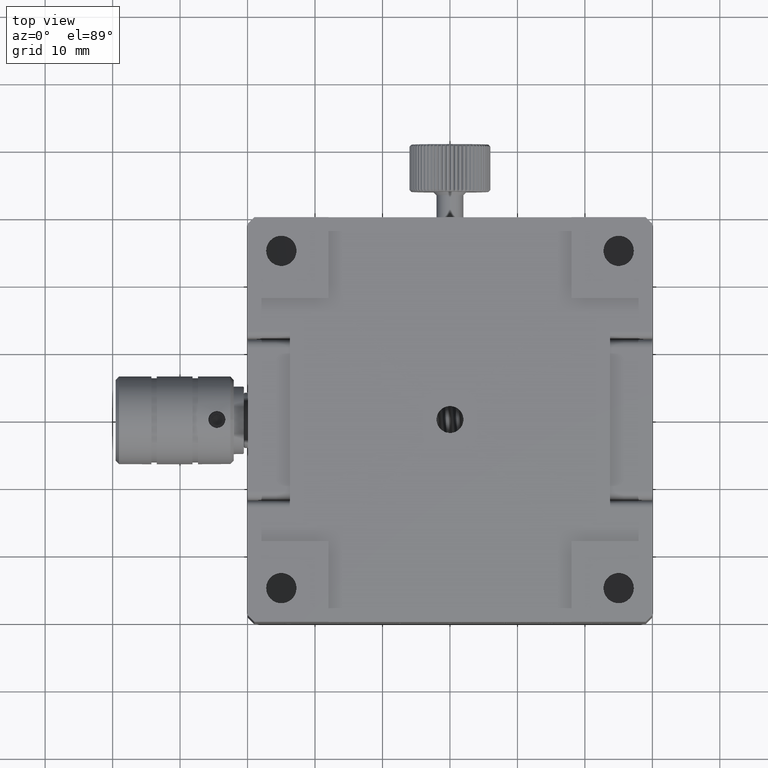
[diagram: clean part render]
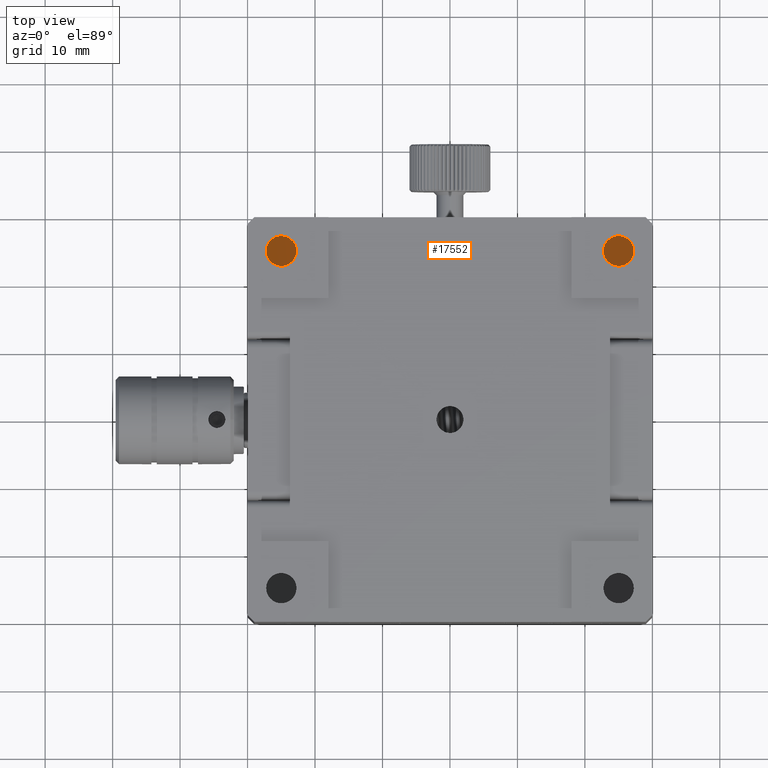
[diagram: same view with one face highlighted and labeled with its STEP entity id]
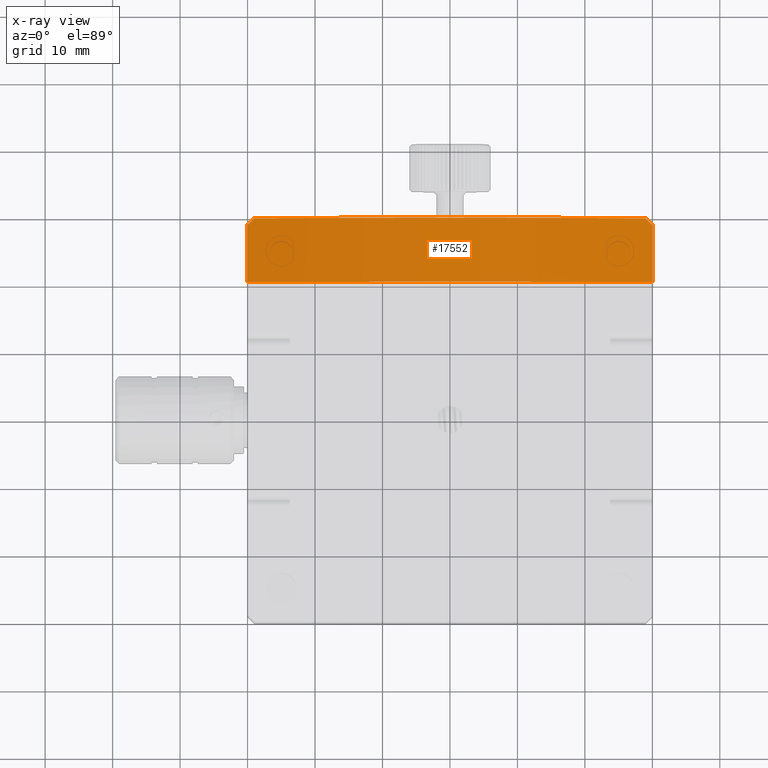
[diagram: x-ray of the same camera — body ghosted, the highlighted face saturated]
A machine part, top view. The second image highlights one B-rep face of the part: STEP entity #17552.
The next image is the same camera in x-ray: the body ghosted, the highlighted face saturated — about 0% of this face is hidden behind the body in this view.
In plain terms, the highlighted cylindrical surface (partial cylindrical patch) has radius 95 mm, axis along (-0, 1, 0).
Its self-contained STEP definition (entity closure, byte-faithful):
#600 = VERTEX_POINT ( 'NONE', #24627 ) ;
#1051 = EDGE_CURVE ( 'NONE', #21674, #32846, #30555, .T. ) ;
#1110 = EDGE_LOOP ( 'NONE', ( #25532, #10523, #35107, #34508, #12187, #23690 ) ) ;
#2087 = CARTESIAN_POINT ( 'NONE',  ( -29.00000000000001776, 30.00000000000001776, 90.46546302827846375 ) ) ;
#2770 = AXIS2_PLACEMENT_3D ( 'NONE', #33010, #4527, #27347 ) ;
#3134 = EDGE_CURVE ( 'NONE', #600, #30518, #31337, .T. ) ;
#3338 = CARTESIAN_POINT ( 'NONE',  ( -30.00000000000001776, 29.00000000000001776, 90.13878189170750943 ) ) ;
#4158 = CYLINDRICAL_SURFACE ( 'NONE', #2770, 95.00000000484639884 ) ;
#4337 = CARTESIAN_POINT ( 'NONE',  ( -1.191282439230357381E-15, 30.00000000000002842, 1.041433404782308372E-14 ) ) ;
#4527 = DIRECTION ( 'NONE',  ( -3.970941464101185024E-17, 1.000000000000000000, 1.158480047971950664E-16 ) ) ;
#4555 = CARTESIAN_POINT ( 'NONE',  ( -29.66727130783260691, 29.33272869216742151, 90.24952069420223211 ) ) ;
#5509 = CARTESIAN_POINT ( 'NONE',  ( -8.140430001407444830E-16, 20.50000000000001776, 9.313778002249730344E-15 ) ) ;
#7622 = EDGE_CURVE ( 'NONE', #32846, #30518, #26208, .T. ) ;
#9794 = VERTEX_POINT ( 'NONE', #21338 ) ;
#10169 = CARTESIAN_POINT ( 'NONE',  ( 30.00000000000000355, 29.00000000000000355, 90.13878189170750943 ) ) ;
#10523 = ORIENTED_EDGE ( 'NONE', *, *, #18250, .T. ) ;
#10552 = DIRECTION ( 'NONE',  ( 3.970941464101185024E-17, -1.000000000000000000, -1.158480047971950664E-16 ) ) ;
#10681 = CARTESIAN_POINT ( 'NONE',  ( 29.66727130783259980, 29.33272869216740730, 90.24952069420224632 ) ) ;
#12110 = CARTESIAN_POINT ( 'NONE',  ( -29.00000000000001776, 30.00000000000001776, 90.46546302827846375 ) ) ;
#12187 = ORIENTED_EDGE ( 'NONE', *, *, #3134, .T. ) ;
#12459 = CIRCLE ( 'NONE', #32944, 95.00000000484639884 ) ;
#12466 = FACE_OUTER_BOUND ( 'NONE', #1110, .T. ) ;
#15997 = EDGE_CURVE ( 'NONE', #33587, #9794, #33441, .T. ) ;
#16263 = CARTESIAN_POINT ( 'NONE',  ( -30.00000000000001776, 29.00000000000001776, 90.13878189170750943 ) ) ;
#16431 =( BOUNDED_CURVE ( )  B_SPLINE_CURVE ( 3, ( #33509, #10681, #16544, #22184 ),
 .UNSPECIFIED., .F., .F. ) 
 B_SPLINE_CURVE_WITH_KNOTS ( ( 4, 4 ),
 ( 4.391100391136857795, 4.402174214803530106 ),
 .UNSPECIFIED. ) 
 CURVE ( )  GEOMETRIC_REPRESENTATION_ITEM ( )  RATIONAL_B_SPLINE_CURVE ( ( 1.000000000000000000, 0.9999897808952242784, 0.9999897808952242784, 1.000000000000000000 ) ) 
 REPRESENTATION_ITEM ( '' )  );
#16438 = DIRECTION ( 'NONE',  ( -3.970941464101183791E-17, 1.000000000000000000, -0.000000000000000000 ) ) ;
#16544 = CARTESIAN_POINT ( 'NONE',  ( 29.33393456809620403, 29.66606543190380663, 90.35841551920022141 ) ) ;
#17552 = ADVANCED_FACE ( 'NONE', ( #12466 ), #4158, .T. ) ;
#18250 = EDGE_CURVE ( 'NONE', #21674, #9794, #12459, .T. ) ;
#21338 = CARTESIAN_POINT ( 'NONE',  ( 30.00000000000000711, 20.50000000000000355, 90.13878189170750943 ) ) ;
#21674 = VERTEX_POINT ( 'NONE', #23631 ) ;
#22184 = CARTESIAN_POINT ( 'NONE',  ( 28.99999999999998934, 30.00000000000002132, 90.46546302827849217 ) ) ;
#23631 = CARTESIAN_POINT ( 'NONE',  ( -30.00000000000001421, 20.50000000000000355, 90.13878189170750943 ) ) ;
#23690 = ORIENTED_EDGE ( 'NONE', *, *, #7622, .F. ) ;
#24627 = CARTESIAN_POINT ( 'NONE',  ( 28.99999999999998934, 30.00000000000002132, 90.46546302827849217 ) ) ;
#24728 = CARTESIAN_POINT ( 'NONE',  ( -29.33393456809621469, 29.66606543190382439, 90.35841551920020720 ) ) ;
#24951 = DIRECTION ( 'NONE',  ( -3.970941464101185024E-17, 1.000000000000000000, 1.158480047971950664E-16 ) ) ;
#25532 = ORIENTED_EDGE ( 'NONE', *, *, #1051, .F. ) ;
#26208 =( BOUNDED_CURVE ( )  B_SPLINE_CURVE ( 3, ( #16263, #4555, #24728, #2087 ),
 .UNSPECIFIED., .F., .F. ) 
 B_SPLINE_CURVE_WITH_KNOTS ( ( 4, 4 ),
 ( 4.391100391136857795, 4.402174214803530106 ),
 .UNSPECIFIED. ) 
 CURVE ( )  GEOMETRIC_REPRESENTATION_ITEM ( )  RATIONAL_B_SPLINE_CURVE ( ( 1.000000000000000000, 0.9999897808952242784, 0.9999897808952242784, 1.000000000000000000 ) ) 
 REPRESENTATION_ITEM ( '' )  );
#26533 = EDGE_CURVE ( 'NONE', #33587, #600, #16431, .T. ) ;
#27347 = DIRECTION ( 'NONE',  ( 0.000000000000000000, -1.095614826876827827E-16, 1.000000000000000000 ) ) ;
#27402 = CARTESIAN_POINT ( 'NONE',  ( 30.00000000000000711, -29.99999999999998934, 90.13878189170749522 ) ) ;
#27720 = VECTOR ( 'NONE', #16438, 1000.000000000000000 ) ;
#28099 = CARTESIAN_POINT ( 'NONE',  ( -30.00000000000001421, -29.99999999999998934, 90.13878189170749522 ) ) ;
#30518 = VERTEX_POINT ( 'NONE', #12110 ) ;
#30555 = LINE ( 'NONE', #28099, #27720 ) ;
#30715 = DIRECTION ( 'NONE',  ( 0.000000000000000000, -1.095614826876827827E-16, 1.000000000000000000 ) ) ;
#31337 = CIRCLE ( 'NONE', #33165, 95.00000000484639884 ) ;
#32846 = VERTEX_POINT ( 'NONE', #3338 ) ;
#32944 = AXIS2_PLACEMENT_3D ( 'NONE', #5509, #24951, #33634 ) ;
#33010 = CARTESIAN_POINT ( 'NONE',  ( -1.191282439230357381E-15, 30.00000000000002842, 1.041433404782308372E-14 ) ) ;
#33165 = AXIS2_PLACEMENT_3D ( 'NONE', #4337, #10552, #30715 ) ;
#33441 = LINE ( 'NONE', #27402, #34008 ) ;
#33509 = CARTESIAN_POINT ( 'NONE',  ( 30.00000000000000355, 29.00000000000000355, 90.13878189170750943 ) ) ;
#33587 = VERTEX_POINT ( 'NONE', #10169 ) ;
#33634 = DIRECTION ( 'NONE',  ( 0.000000000000000000, -1.095614826876827827E-16, 1.000000000000000000 ) ) ;
#34008 = VECTOR ( 'NONE', #36073, 1000.000000000000000 ) ;
#34508 = ORIENTED_EDGE ( 'NONE', *, *, #26533, .T. ) ;
#35107 = ORIENTED_EDGE ( 'NONE', *, *, #15997, .F. ) ;
#36073 = DIRECTION ( 'NONE',  ( 3.970941464101183791E-17, -1.000000000000000000, -0.000000000000000000 ) ) ;